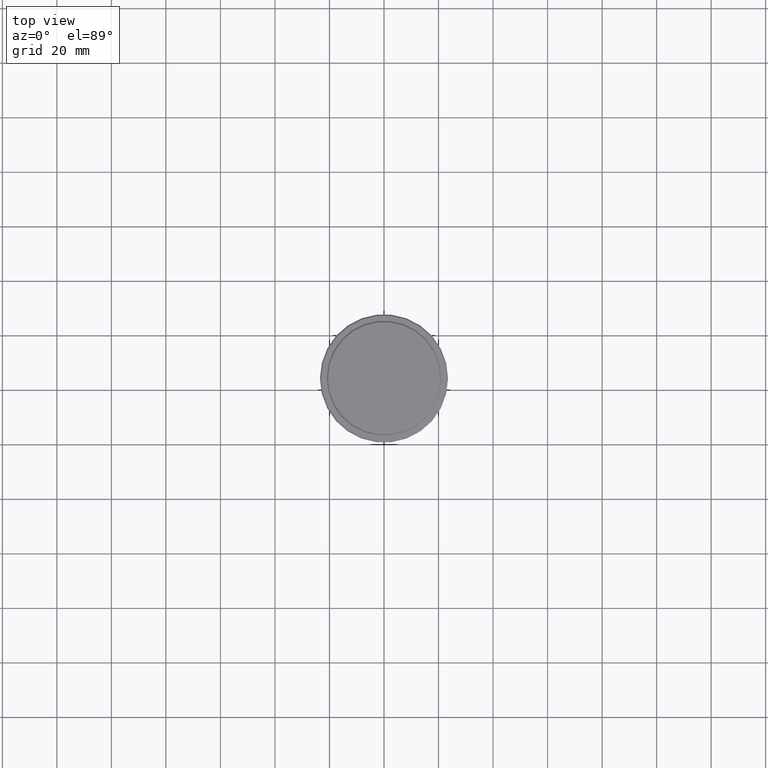
[diagram: clean part render]
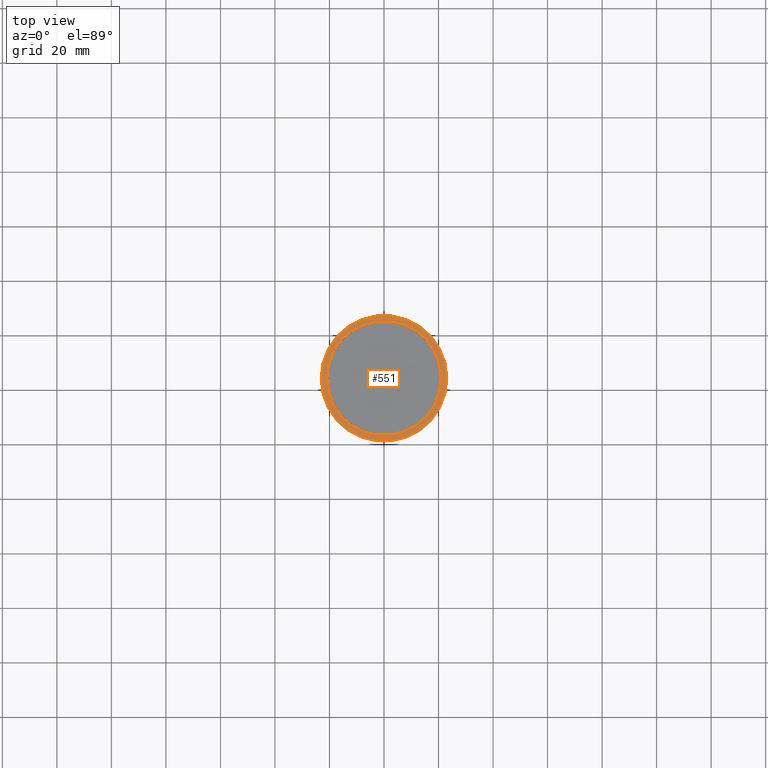
[diagram: same view with one face highlighted and labeled with its STEP entity id]
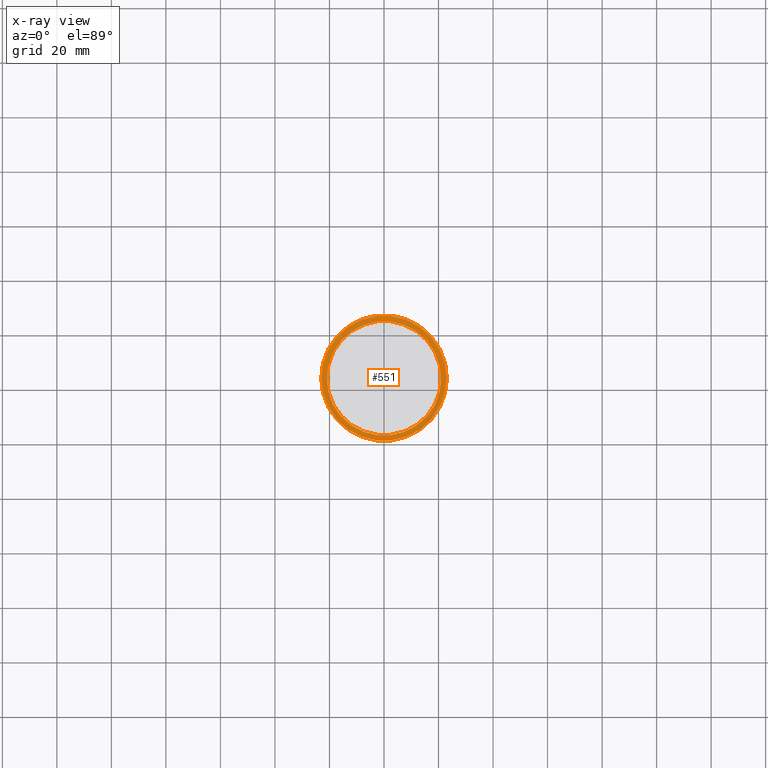
[diagram: x-ray of the same camera — body ghosted, the highlighted face saturated]
A machine part, top view. The second image highlights one B-rep face of the part: STEP entity #551.
The next image is the same camera in x-ray: the body ghosted, the highlighted face saturated — about 0% of this face is hidden behind the body in this view.
In plain terms, the highlighted planar face has unit normal (0, -0, 1).
Its self-contained STEP definition (entity closure, byte-faithful):
#23 = VERTEX_POINT ( 'NONE', #268 ) ;
#79 = FACE_BOUND ( 'NONE', #607, .T. ) ;
#91 = CARTESIAN_POINT ( 'NONE',  ( 0.000000000000000000, 20.49999999999999645, -9.000000000000000000 ) ) ;
#106 = DIRECTION ( 'NONE',  ( 0.000000000000000000, 0.000000000000000000, -1.000000000000000000 ) ) ;
#121 = AXIS2_PLACEMENT_3D ( 'NONE', #1196, #106, #550 ) ;
#125 = EDGE_CURVE ( 'NONE', #592, #1316, #839, .T. ) ;
#151 = CIRCLE ( 'NONE', #609, 22.99999999999999645 ) ;
#172 = CIRCLE ( 'NONE', #121, 20.99999999999999289 ) ;
#197 = PLANE ( 'NONE',  #913 ) ;
#263 = ORIENTED_EDGE ( 'NONE', *, *, #1054, .T. ) ;
#268 = CARTESIAN_POINT ( 'NONE',  ( 22.99999999999999645, 2.847303808017596139E-15, -9.000000000000000000 ) ) ;
#273 = ORIENTED_EDGE ( 'NONE', *, *, #125, .T. ) ;
#315 = CARTESIAN_POINT ( 'NONE',  ( 0.000000000000000000, 0.000000000000000000, -9.000000000000000000 ) ) ;
#338 = DIRECTION ( 'NONE',  ( 1.000000000000000000, 0.000000000000000000, 0.000000000000000000 ) ) ;
#343 = DIRECTION ( 'NONE',  ( -0.000000000000000000, -0.000000000000000000, 1.000000000000000000 ) ) ;
#476 = DIRECTION ( 'NONE',  ( -0.000000000000000000, -0.000000000000000000, 1.000000000000000000 ) ) ;
#482 = ORIENTED_EDGE ( 'NONE', *, *, #705, .T. ) ;
#550 = DIRECTION ( 'NONE',  ( 1.000000000000000000, 0.000000000000000000, 0.000000000000000000 ) ) ;
#551 = ADVANCED_FACE ( 'NONE', ( #1410, #79 ), #197, .T. ) ;
#554 = VERTEX_POINT ( 'NONE', #1085 ) ;
#567 = CARTESIAN_POINT ( 'NONE',  ( 0.000000000000000000, 0.000000000000000000, -9.000000000000000000 ) ) ;
#592 = VERTEX_POINT ( 'NONE', #858 ) ;
#607 = EDGE_LOOP ( 'NONE', ( #273, #263 ) ) ;
#608 = CARTESIAN_POINT ( 'NONE',  ( -20.99999999999999289, 2.571758278209440872E-15, -9.000000000000000000 ) ) ;
#609 = AXIS2_PLACEMENT_3D ( 'NONE', #991, #343, #338 ) ;
#627 = AXIS2_PLACEMENT_3D ( 'NONE', #567, #476, #1363 ) ;
#644 = DIRECTION ( 'NONE',  ( 0.000000000000000000, 0.000000000000000000, -1.000000000000000000 ) ) ;
#654 = DIRECTION ( 'NONE',  ( 1.000000000000000000, 0.000000000000000000, 0.000000000000000000 ) ) ;
#662 = DIRECTION ( 'NONE',  ( 1.000000000000000000, 0.000000000000000000, 0.000000000000000000 ) ) ;
#705 = EDGE_CURVE ( 'NONE', #554, #23, #1081, .T. ) ;
#793 = AXIS2_PLACEMENT_3D ( 'NONE', #315, #644, #662 ) ;
#839 = CIRCLE ( 'NONE', #793, 20.99999999999999289 ) ;
#858 = CARTESIAN_POINT ( 'NONE',  ( 20.99999999999999289, 0.000000000000000000, -9.000000000000000000 ) ) ;
#910 = EDGE_LOOP ( 'NONE', ( #482, #1011 ) ) ;
#913 = AXIS2_PLACEMENT_3D ( 'NONE', #91, #1075, #654 ) ;
#991 = CARTESIAN_POINT ( 'NONE',  ( 0.000000000000000000, 0.000000000000000000, -9.000000000000000000 ) ) ;
#1010 = EDGE_CURVE ( 'NONE', #23, #554, #151, .T. ) ;
#1011 = ORIENTED_EDGE ( 'NONE', *, *, #1010, .T. ) ;
#1054 = EDGE_CURVE ( 'NONE', #1316, #592, #172, .T. ) ;
#1075 = DIRECTION ( 'NONE',  ( 0.000000000000000000, -0.000000000000000000, 1.000000000000000000 ) ) ;
#1081 = CIRCLE ( 'NONE', #627, 22.99999999999999645 ) ;
#1085 = CARTESIAN_POINT ( 'NONE',  ( -22.99999999999999645, 0.000000000000000000, -9.000000000000000000 ) ) ;
#1196 = CARTESIAN_POINT ( 'NONE',  ( 0.000000000000000000, 0.000000000000000000, -9.000000000000000000 ) ) ;
#1316 = VERTEX_POINT ( 'NONE', #608 ) ;
#1363 = DIRECTION ( 'NONE',  ( 1.000000000000000000, 0.000000000000000000, 0.000000000000000000 ) ) ;
#1410 = FACE_OUTER_BOUND ( 'NONE', #910, .T. ) ;